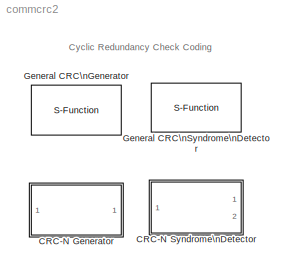
MODEL commcrc2
KIND library
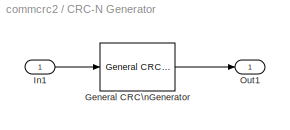
BLOCK [SubSystem] CRC-N Generator
  MaskCallbackString = ||
  MaskDescription = Generate CRC bits according to the selected CRC method and append them to the input data frames. The CRC method uses a pre-defined CRC-N polynomial where N is the number of bits in the checksum.\n\nThe initial states parameter must be a binary scalar or vector of length equal to N.\n\nThe input must be a binary frame-based column vector.
  MaskDisplay = disp('CRC-N\\nGenerator');
  MaskEnableString = on,on,on
  MaskHelp = helpview(commbhelp);\n
  MaskIconFrame = on
  MaskIconOpaque = on
  MaskIconRotate = none
  MaskIconUnits = autoscale
  MaskInitialization = if strcmp(crcMethod, 'CRC-32')\n   genPoly = [1 0 0 0 0 0 1 0 0 1 1 0 0 0 0 0 1 0 0 0 1 1 1 0 1 1 0 1 1 0 1 1 1];\nelseif strcmp(crcMethod, 'CRC-24')\n   genPoly = [1 1 0 0 0 0 0 0 0 0 1 0 1 0 0 0 1 0 0 0 0 0 0 0 1];\nelseif strcmp(crcMethod, 'CRC-16')\n   genPoly = [1 1 0 0 0 0 0 0 0 0 0 0 0 0 1 0 1];\nelseif strcmp(crcMethod, 'Reversed CRC-16')\n   genPoly = [1 0 1 0 0 0 0 0 0 0 0 0 0 0 0 1 1];\...<+138ch>
  MaskPromptString = CRC method:|Initial States:|Checksums per frame:
  MaskStyleString = popup(CRC-32|CRC-24|CRC-16|Reversed CRC-16|CRC-8|CRC-4),edit,edit
  MaskTabNameString = ,,
  MaskToolTipString = on,on,on
  MaskTunableValueString = on,on,on
  MaskType = CRC-N Generator
  MaskValueString = CRC-16|[0]|1
  MaskVarAliasString = ,,
  MaskVariables = crcMethod=&1;iniStates=@2;numChecksums=@3;
  MaskVisibilityString = on,on,on
  MinAlgLoopOccurrences = off
  Ports = [1, 1]
  PropExecContextAcrossSSBoundary = on
  RTWSystemCode = Auto
  TreatAsAtomicUnit = off
BLOCK [Reference] CRC-N Generator/General CRC\nGenerator  REF=commcrc2/General CRC\nGenerator
  Ports = [1, 1]
  SourceBlock = commcrc2/General CRC\nGenerator
  SourceType = General CRC Generator
  genPoly = genPoly
  iniStates = iniStates
  numChecksums = numChecksums
BLOCK [Inport] CRC-N Generator/In1
  IconDisplay = Port number
  LatchInput = off
BLOCK [Outport] CRC-N Generator/Out1
  BusOutputAsStruct = off
  IconDisplay = Port number
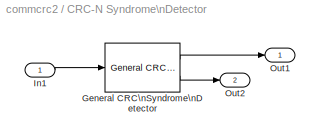
BLOCK [SubSystem] CRC-N Syndrome\nDetector
  MaskCallbackString = ||
  MaskDescription = Detect errors in the input data frames according to the selected CRC method. The CRC method uses a pre-defined CRC-N polynomial where N is the number of bits in the checksum. \n\nThe first output is the data frame with the CRC bits removed and the second output indicates if an error was detected in the data frame.\n\nThe initial states parameter must be a binary scalar or vector of length equal to...<+60ch>
  MaskDisplay = disp('CRC-N\\nSyndrome\\nDetector');\nport_label('output',2,'Err');\n
  MaskEnableString = on,on,on
  MaskHelp = helpview(commbhelp);
  MaskIconFrame = on
  MaskIconOpaque = on
  MaskIconRotate = none
  MaskIconUnits = autoscale
  MaskInitialization = if strcmp(crcMethod, 'CRC-32')\n   genPoly = [1 0 0 0 0 0 1 0 0 1 1 0 0 0 0 0 1 0 0 0 1 1 1 0 1 1 0 1 1 0 1 1 1];\nelseif strcmp(crcMethod, 'CRC-24')\n   genPoly = [1 1 0 0 0 0 0 0 0 0 1 0 1 0 0 0 1 0 0 0 0 0 0 0 1];\nelseif strcmp(crcMethod, 'CRC-16')\n   genPoly = [1 1 0 0 0 0 0 0 0 0 0 0 0 0 1 0 1];\nelseif strcmp(crcMethod, 'Reversed CRC-16')\n   genPoly = [1 0 1 0 0 0 0 0 0 0 0 0 0 0 0 1 1];\...<+138ch>
  MaskPromptString = CRC method:|Initial states:|Checksums per frame:
  MaskStyleString = popup(CRC-32|CRC-24|CRC-16|Reversed CRC-16|CRC-8|CRC-4),edit,edit
  MaskTabNameString = ,,
  MaskToolTipString = on,on,on
  MaskTunableValueString = on,on,on
  MaskType = CRC-N Syndrome Detector
  MaskValueString = CRC-16|[0]|1
  MaskVarAliasString = ,,
  MaskVariables = crcMethod=&1;iniStates=@2;numChecksums=@3;
  MaskVisibilityString = on,on,on
  MinAlgLoopOccurrences = off
  Ports = [1, 2]
  PropExecContextAcrossSSBoundary = on
  RTWSystemCode = Auto
  TreatAsAtomicUnit = off
BLOCK [Reference] CRC-N Syndrome\nDetector/General CRC\nSyndrome\nDetector  REF=commcrc2/General CRC\nSyndrome\nDetector
  Ports = [1, 2]
  SourceBlock = commcrc2/General CRC\nSyndrome\nDetector
  SourceType = General CRC Syndrome Detector
  genPoly = genPoly
  iniStates = iniStates
  numChecksums = numChecksums
BLOCK [Inport] CRC-N Syndrome\nDetector/In1
  IconDisplay = Port number
  LatchInput = off
BLOCK [Outport] CRC-N Syndrome\nDetector/Out1
  BusOutputAsStruct = off
  IconDisplay = Port number
BLOCK [Outport] CRC-N Syndrome\nDetector/Out2
  BusOutputAsStruct = off
  IconDisplay = Port number
  Port = 2
BLOCK [S-Function] General CRC\nGenerator
  FunctionName = scomcrcgen
  MaskCallbackString = ||
  MaskDescription = Generate CRC bits according to the generator polynomial and append them to the input data frames. The generator polynomial must be specified as a binary vector or a descending ordered polynomial, to indicate the connection points.\n\nThe initial states parameter must be a binary scalar or vector of length equal to the degree of the polynomial.\n\nThe input must be a binary frame-based column vecto...<+2ch>
  MaskDisplay = disp('General\\nCRC\\nGenerator');\n
  MaskEnableString = on,on,on
  MaskHelp = helpview(commbhelp);\n
  MaskIconFrame = on
  MaskIconOpaque = on
  MaskIconRotate = none
  MaskIconUnits = autoscale
  MaskInitialization = [genPoly, numBits, iniStates, numChecksums] = commblkcrcgen(genPoly, iniStates, numChecksums);\n
  MaskPromptString = Generator polynomial:|Initial states:|Checksums per frame:
  MaskSelfModifiable = on
  MaskStyleString = edit,edit,edit
  MaskTabNameString = ,,
  MaskToolTipString = on,on,on
  MaskTunableValueString = on,on,on
  MaskType = General CRC Generator
  MaskValueString = [1 0 0 0 1 0 0 0 0 0 0 1 0 0 0 0 1]|[0]|1
  MaskVarAliasString = ,,
  MaskVariables = genPoly=@1;iniStates=@2;numChecksums=@3;
  MaskVisibilityString = on,on,on
  Parameters = genPoly, numBits, iniStates, numChecksums
  Ports = [1, 1]
BLOCK [S-Function] General CRC\nSyndrome\nDetector
  FunctionName = scomcrcsynddetect
  MaskCallbackString = ||
  MaskDescription = Detect errors in the input data frames according to the generator polynomial. The generator polynomial must be specified as a binary vector or a descending ordered polynomial, to indicate the connection points.\n\nThe first output is the data frame with the CRC bits removed and the second output indicates if an error was detected in the data frame.\n\nThe initial states parameter must be a binary ...<+122ch>
  MaskDisplay = disp('General CRC\\nSyndrome\\nDetector');\nport_label('output',2,'Err');\n
  MaskEnableString = on,on,on
  MaskHelp = helpview(commbhelp);
  MaskIconFrame = on
  MaskIconOpaque = on
  MaskIconRotate = none
  MaskIconUnits = autoscale
  MaskInitialization = [genPoly, numBits, iniStates, numChecksums] = commblkcrcgen(genPoly, iniStates, numChecksums);
  MaskPromptString = Generator polynomial:|Initial states:|Checksums per frame:
  MaskSelfModifiable = on
  MaskStyleString = edit,edit,edit
  MaskTabNameString = ,,
  MaskToolTipString = on,on,on
  MaskTunableValueString = on,on,on
  MaskType = General CRC Syndrome Detector
  MaskValueString = [1 0 0 0 1 0 0 0 0 0 0 1 0 0 0 0 1]|[0]|1
  MaskVarAliasString = ,,
  MaskVariables = genPoly=@1;iniStates=@2;numChecksums=@3;
  MaskVisibilityString = on,on,on
  Parameters = genPoly, numBits, iniStates, numChecksums
  Ports = [1, 2]
ANNOTATION (root): Cyclic Redundancy Check Coding
LINE CRC-N Generator/General CRC\nGenerator:1 -> CRC-N Generator/Out1:1
LINE CRC-N Generator/In1:1 -> CRC-N Generator/General CRC\nGenerator:1
LINE CRC-N Syndrome\nDetector/General CRC\nSyndrome\nDetector:1 -> CRC-N Syndrome\nDetector/Out1:1
LINE CRC-N Syndrome\nDetector/General CRC\nSyndrome\nDetector:2 -> CRC-N Syndrome\nDetector/Out2:1
LINE CRC-N Syndrome\nDetector/In1:1 -> CRC-N Syndrome\nDetector/General CRC\nSyndrome\nDetector:1
